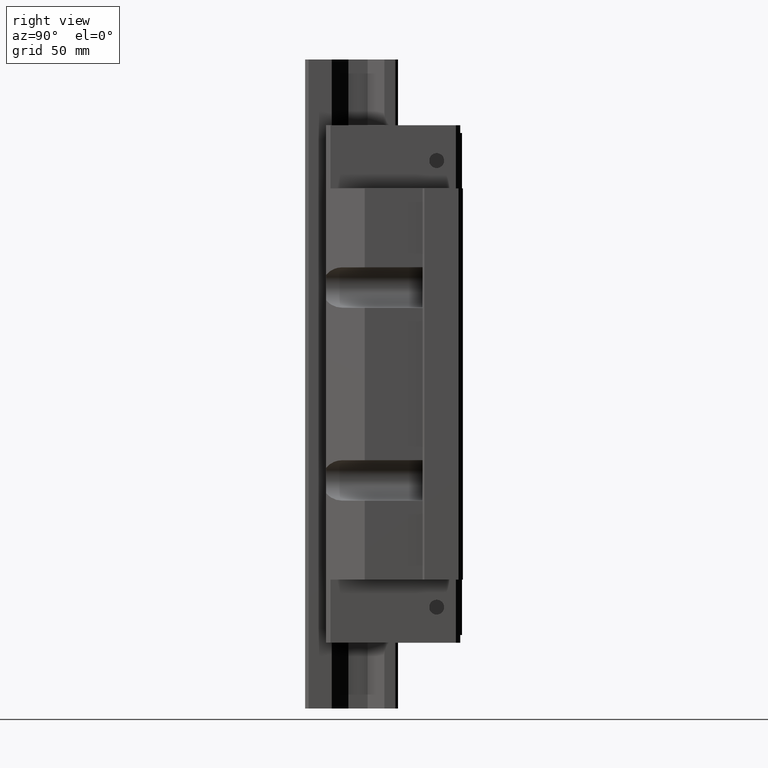
[diagram: clean part render]
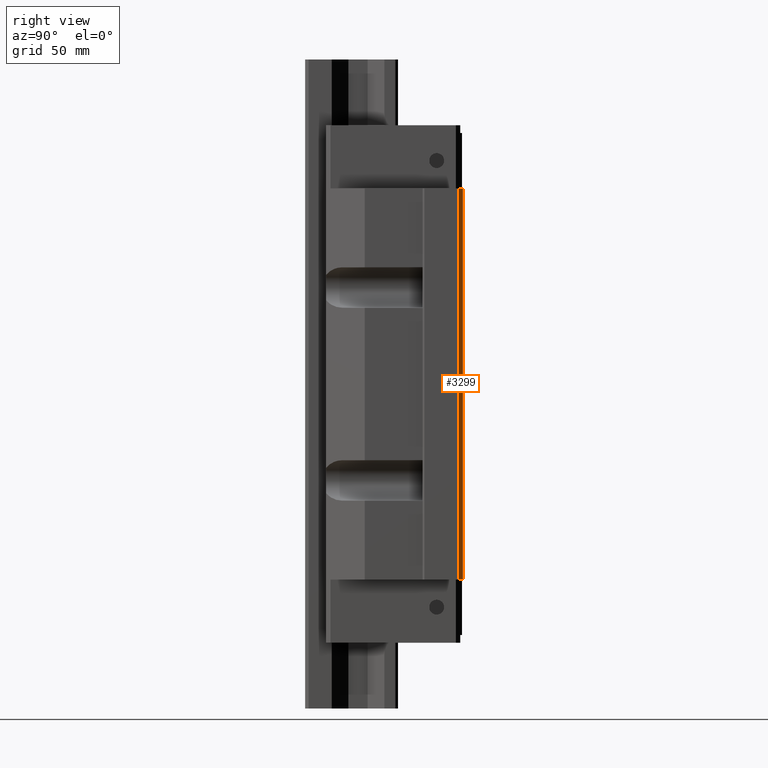
[diagram: same view with one face highlighted and labeled with its STEP entity id]
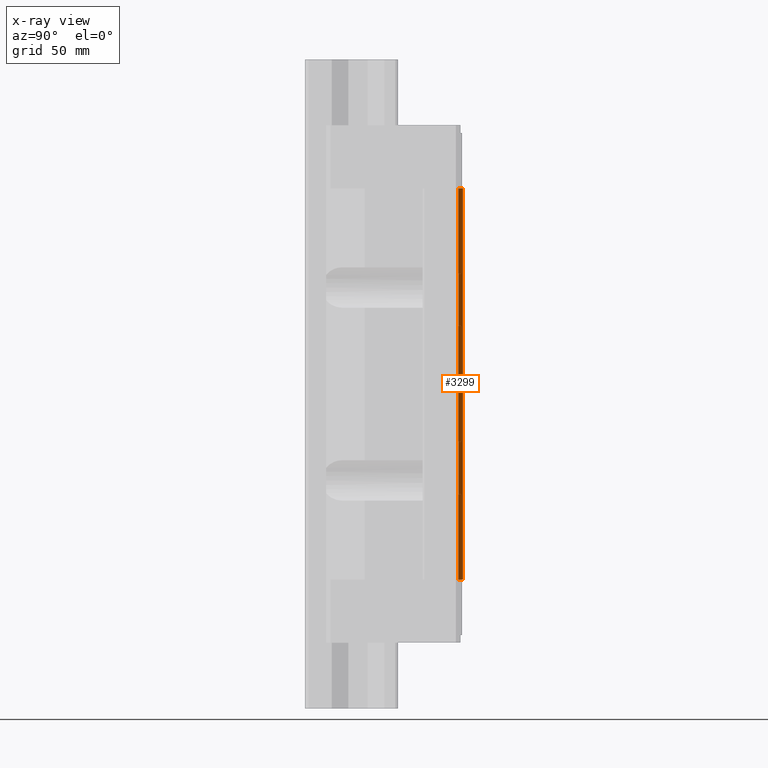
[diagram: x-ray of the same camera — body ghosted, the highlighted face saturated]
A machine part, right view. The second image highlights one B-rep face of the part: STEP entity #3299.
The next image is the same camera in x-ray: the body ghosted, the highlighted face saturated — about 0% of this face is hidden behind the body in this view.
In plain terms, the highlighted planar face has unit normal (0.7071, 0.7071, 0).
Its self-contained STEP definition (entity closure, byte-faithful):
#37=DIRECTION('',(-7.071067811865E-1,7.071067811866E-1,0.E0));
#38=VECTOR('',#37,3.535538148574E0);
#39=CARTESIAN_POINT('',(8.499994E1,-2.500003E0,-1.115E2));
#40=LINE('',#39,#38);
#301=DIRECTION('',(7.071067811865E-1,-7.071067811866E-1,0.E0));
#302=VECTOR('',#301,3.535538148574E0);
#303=CARTESIAN_POINT('',(8.2499937E1,1.909539758942E-13,1.115E2));
#304=LINE('',#303,#302);
#916=DIRECTION('',(0.E0,0.E0,1.E0));
#917=VECTOR('',#916,2.23E2);
#918=CARTESIAN_POINT('',(8.2499937E1,1.909539758942E-13,-1.115E2));
#919=LINE('',#918,#917);
#1000=DIRECTION('',(0.E0,0.E0,1.E0));
#1001=VECTOR('',#1000,2.23E2);
#1002=CARTESIAN_POINT('',(8.499994E1,-2.500003E0,-1.115E2));
#1003=LINE('',#1002,#1001);
#1623=CARTESIAN_POINT('',(8.499994E1,-2.500003E0,-1.115E2));
#1624=VERTEX_POINT('',#1623);
#1625=CARTESIAN_POINT('',(8.2499937E1,1.909583602355E-13,-1.115E2));
#1626=VERTEX_POINT('',#1625);
#1783=CARTESIAN_POINT('',(8.2499937E1,1.909539758942E-13,1.115E2));
#1784=VERTEX_POINT('',#1783);
#1785=CARTESIAN_POINT('',(8.499994E1,-2.500003E0,1.115E2));
#1786=VERTEX_POINT('',#1785);
#3287=CARTESIAN_POINT('',(8.499994E1,-2.500003E0,-8.E1));
#3288=DIRECTION('',(7.071067811866E-1,7.071067811865E-1,0.E0));
#3289=DIRECTION('',(-7.071067811865E-1,7.071067811866E-1,0.E0));
#3290=AXIS2_PLACEMENT_3D('',#3287,#3288,#3289);
#3291=PLANE('',#3290);
#3292=ORIENTED_EDGE('',*,*,#2128,.F.);
#3294=ORIENTED_EDGE('',*,*,#3293,.T.);
#3295=ORIENTED_EDGE('',*,*,#2396,.F.);
#3296=ORIENTED_EDGE('',*,*,#3216,.F.);
#3297=EDGE_LOOP('',(#3292,#3294,#3295,#3296));
#3298=FACE_OUTER_BOUND('',#3297,.F.);
#3299=ADVANCED_FACE('',(#3298),#3291,.T.);
#2128=EDGE_CURVE('',#1624,#1626,#40,.T.);
#2396=EDGE_CURVE('',#1784,#1786,#304,.T.);
#3216=EDGE_CURVE('',#1626,#1784,#919,.T.);
#3293=EDGE_CURVE('',#1624,#1786,#1003,.T.);